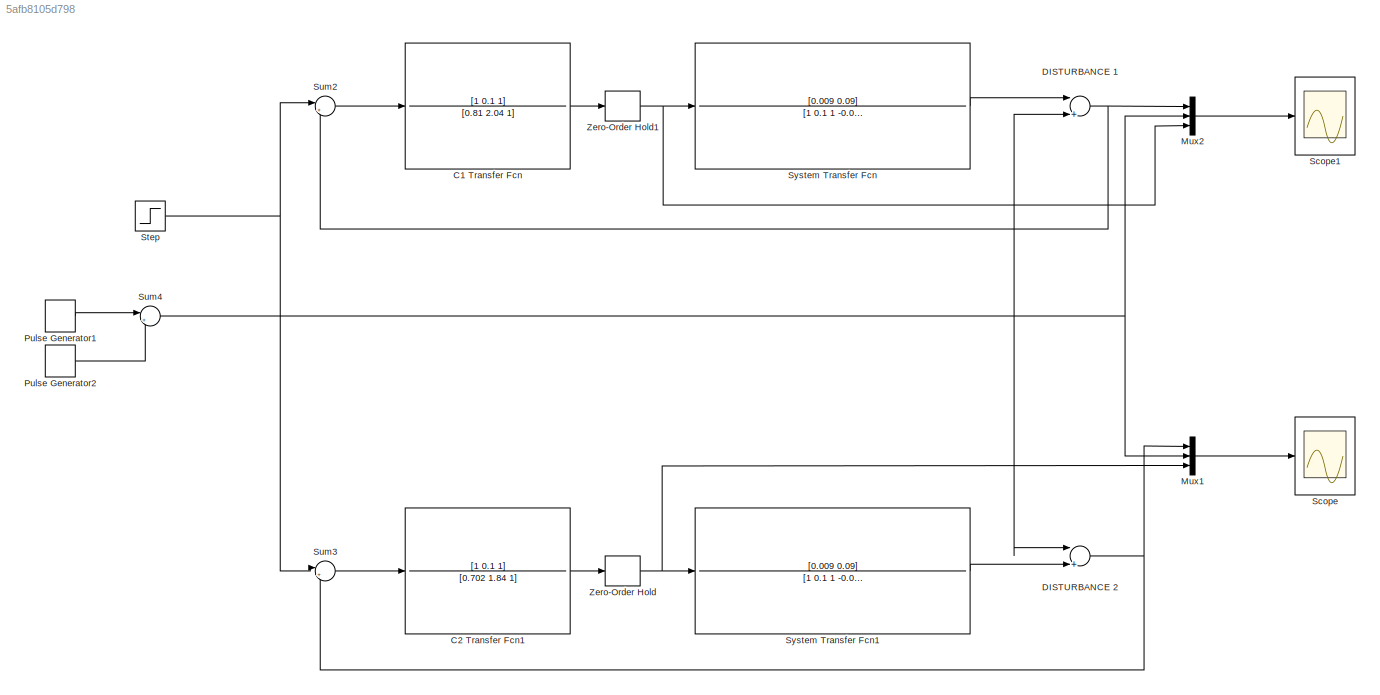
MODEL slx_5afb8105d798
KIND model
CONFIG AbsTol = auto
CONFIG EnableMultiTasking = off
CONFIG FixedStep = auto
CONFIG MaxStep = auto
CONFIG MinStep = auto
CONFIG RelTol = 1e-3
CONFIG SampleTimeConstraint = Unconstrained
CONFIG SolverName = VariableStepAuto
CONFIG StartTime = 0.0
CONFIG StopTime = 50
BLOCK [TransferFcn] C1 Transfer Fcn
  Denominator = [0.81 2.04 1]
  Numerator = [1 0.1 1]
BLOCK [TransferFcn] C2 Transfer Fcn1
  Denominator = [0.702 1.84 1]
  Numerator = [1 0.1 1]
BLOCK [Sum] DISTURBANCE 1
  InputSameDT = off
  Inputs = |++
  NameLocation = top
  OutDataTypeStr = Inherit: Inherit via internal rule
  Ports = [2, 1]
  SaturateOnIntegerOverflow = off
BLOCK [Sum] DISTURBANCE 2
  InputSameDT = off
  Inputs = |++
  NameLocation = top
  OutDataTypeStr = Inherit: Inherit via internal rule
  Ports = [2, 1]
  SaturateOnIntegerOverflow = off
BLOCK [Mux] Mux1
  DisplayOption = bar
  Inputs = 3
  Ports = [3, 1]
BLOCK [Mux] Mux2
  DisplayOption = bar
  Inputs = 3
  Ports = [3, 1]
BLOCK [DiscretePulseGenerator] Pulse Generator1
  Period = 1
  PhaseDelay = 20
  Ports = [0, 1]
  PulseType = Time based
  SampleTime = -1
BLOCK [DiscretePulseGenerator] Pulse Generator2
  Period = 1
  PhaseDelay = 23
  Ports = [0, 1]
  PulseType = Time based
  SampleTime = -1
BLOCK [Scope] Scope
  Floating = off
  NumInputPorts = 1
  Ports = [1]
  ScopeSpecificationString = Simulink.scopes.TimeScopeBlockCfg('CurrentConfiguration', extmgr.ConfigurationSet(extmgr.Configuration('Core','General UI',true),extmgr.Configuration('Core','Source UI',true),extmgr.Configuration('Sources','WiredSimulink',true,'DataLogging',true,'DataLoggingVariableName','Y','DataLoggingSaveFormat','Array','SampleTime','0.01','DataLoggingDecimation','1','DataLoggingDecimateData',true),extmgr.Confi...<+1658ch>
BLOCK [Scope] Scope1
  Floating = off
  NumInputPorts = 1
  Ports = [1]
  ScopeSpecificationString = Simulink.scopes.TimeScopeBlockCfg('CurrentConfiguration', extmgr.ConfigurationSet(extmgr.Configuration('Core','General UI',true),extmgr.Configuration('Core','Source UI',true),extmgr.Configuration('Sources','WiredSimulink',true,'DataLogging',true,'DataLoggingVariableName','Y1','DataLoggingSaveFormat','Array','SampleTime','0.01','DataLoggingDecimation','1','DataLoggingDecimateData',true),extmgr.Conf...<+1692ch>
BLOCK [Step] Step
  SampleTime = 0
BLOCK [Sum] Sum2
  IconShape = round
  InputSameDT = off
  Inputs = |+-
  OutDataTypeStr = Inherit: Inherit via internal rule
  Ports = [2, 1]
  SaturateOnIntegerOverflow = off
BLOCK [Sum] Sum3
  IconShape = round
  InputSameDT = off
  Inputs = |+-
  OutDataTypeStr = Inherit: Inherit via internal rule
  Ports = [2, 1]
  SaturateOnIntegerOverflow = off
BLOCK [Sum] Sum4
  IconShape = round
  InputSameDT = off
  Inputs = |+-
  OutDataTypeStr = Inherit: Inherit via internal rule
  Ports = [2, 1]
  SaturateOnIntegerOverflow = off
BLOCK [TransferFcn] System Transfer Fcn
  Denominator = [1 0.1 1 -0.0000000000000000004256]
  Numerator = [0.009 0.09]
BLOCK [TransferFcn] System Transfer Fcn1
  Denominator = [1 0.1 1 -0.0000000000000000004256]
  Numerator = [0.009 0.09]
BLOCK [ZeroOrderHold] Zero-Order Hold
  SampleTime = -1
BLOCK [ZeroOrderHold] Zero-Order Hold1
  SampleTime = -1
LINE C1 Transfer Fcn:1 -> Zero-Order Hold1:1
LINE C2 Transfer Fcn1:1 -> Zero-Order Hold:1
NET DISTURBANCE 1:1 -> Mux2:1, Sum2:2
NET DISTURBANCE 2:1 -> Mux1:1, Sum3:2
LINE Mux1:1 -> Scope:1
LINE Mux2:1 -> Scope1:1
LINE Pulse Generator1:1 -> Sum4:1
LINE Pulse Generator2:1 -> Sum4:2
NET Step:1 -> Sum2:1, Sum3:1
LINE Sum2:1 -> C1 Transfer Fcn:1
LINE Sum3:1 -> C2 Transfer Fcn1:1
NET Sum4:1 -> DISTURBANCE 1:2, DISTURBANCE 2:1, Mux1:2, Mux2:2
LINE System Transfer Fcn1:1 -> DISTURBANCE 2:2
LINE System Transfer Fcn:1 -> DISTURBANCE 1:1
NET Zero-Order Hold1:1 -> Mux2:3, System Transfer Fcn:1
NET Zero-Order Hold:1 -> Mux1:3, System Transfer Fcn1:1
note: NET lines group one-source signal fan-out (src -> all destinations, sorted); 1:1 wires keep LINE
